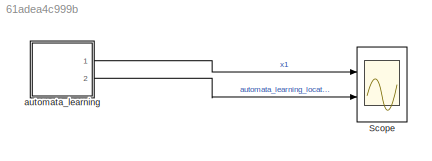
MODEL slx_61adea4c999b
KIND model
CONFIG AbsTol = auto
CONFIG EnableMultiTasking = off
CONFIG FixedStep = auto
CONFIG MaxStep = auto
CONFIG MinStep = auto
CONFIG RelTol = 1e-3
CONFIG SampleTimeConstraint = Unconstrained
CONFIG SolverName = VariableStepAuto
CONFIG StartTime = 0.0
CONFIG StopTime = 10.0
BLOCK [Scope] Scope
  Floating = off
  NumInputPorts = 2
  Ports = [2]
  ScopeSpecificationString = Simulink.scopes.TimeScopeBlockCfg('CurrentConfiguration', extmgr.ConfigurationSet(extmgr.Configuration('Core','General UI',true),extmgr.Configuration('Core','Source UI',true),extmgr.Configuration('Sources','WiredSimulink',true,'DataLogging',true,'DataLoggingSaveFormat','Structure'),extmgr.Configuration('Visuals','Time Domain',true,'SerializedDisplays',{struct('MinYLimReal','-3.13362','MaxYLimReal'...<+1410ch>
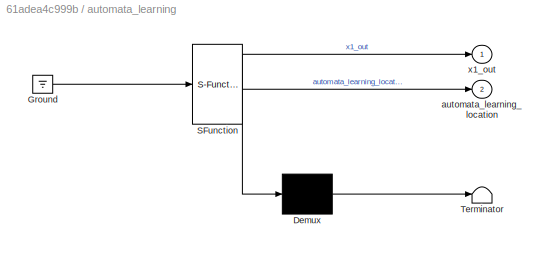
BLOCK [SubSystem] automata_learning
  ErrorFcn = Stateflow.Translate.translate
  PermitHierarchicalResolution = ExplicitOnly
  Ports = [0, 2]
  RequestExecContextInheritance = off
  SFBlockType = Chart
  TreatAsAtomicUnit = on
BLOCK [Demux] automata_learning/ Demux 
  Outputs = 1
  Ports = [1, 1]
BLOCK [Ground] automata_learning/ Ground 
BLOCK [S-Function] automata_learning/ SFunction 
  EnableBusSupport = on
  FunctionName = sf_sfun
  PortCounts = [1 3]
  Ports = [1, 3]
  SFcnIsStateOwnerBlock = off
  SFunctionDeploymentMode = off
  Tag = Stateflow S-Function 3
BLOCK [Terminator] automata_learning/ Terminator 
BLOCK [Outport] automata_learning/automata_learning_location
  Port = 2
BLOCK [Outport] automata_learning/x1_out
LINE automata_learning:1 -> Scope:1
LINE automata_learning:2 -> Scope:2
CHART automata_learning states=2 transitions=3
  STATE_LABEL 'loc1\ndu:\nx1_dot = 0.4988 * x1 + 0.4988;\nx1_out=x1;\nautomata_learning_location =1;'
  STATE_LABEL 'loc2\ndu:\nx1_dot = 0.000000000000255 - 0.5013 * x1;\nx1_out=x1;\nautomata_learning_location =2;'
CHART  states=0 transitions=0
